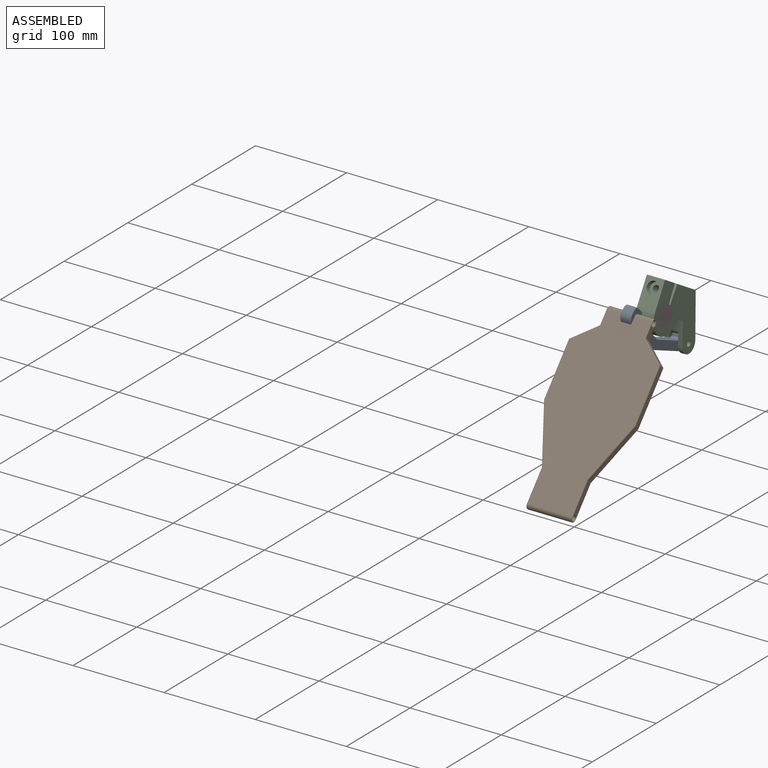
[diagram: assembled view]
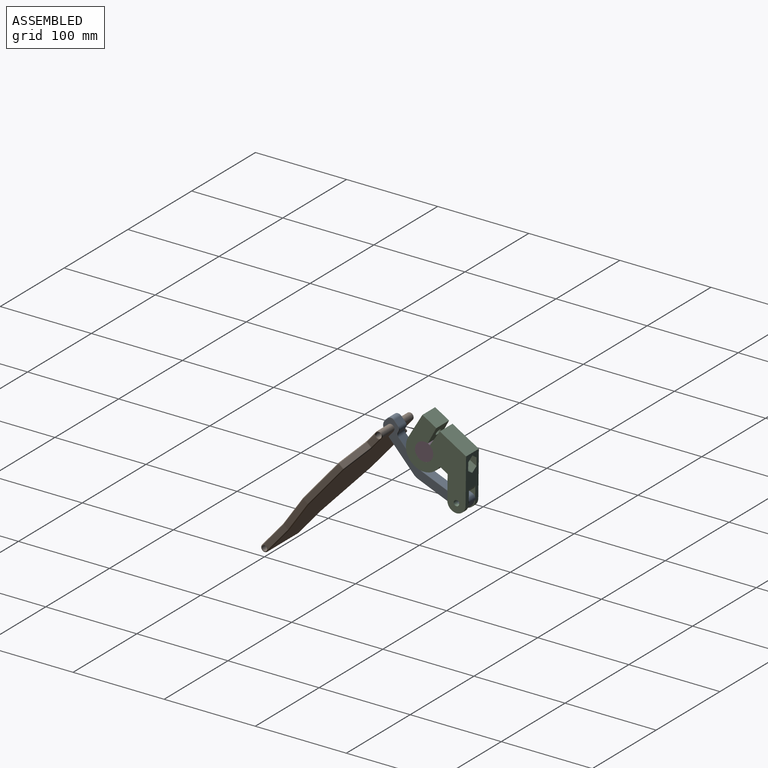
[diagram: assembled view, second angle]
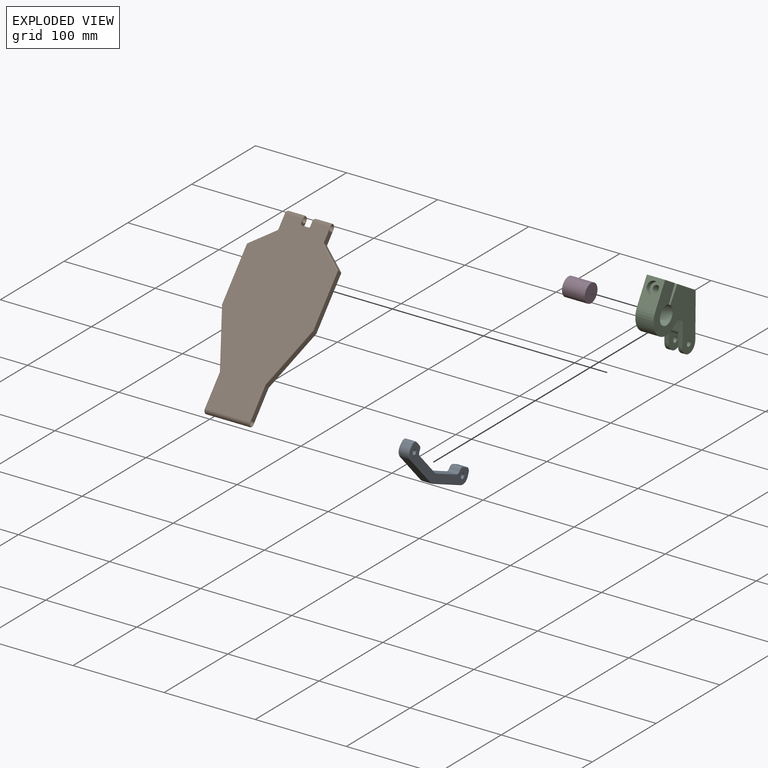
[diagram: exploded view]
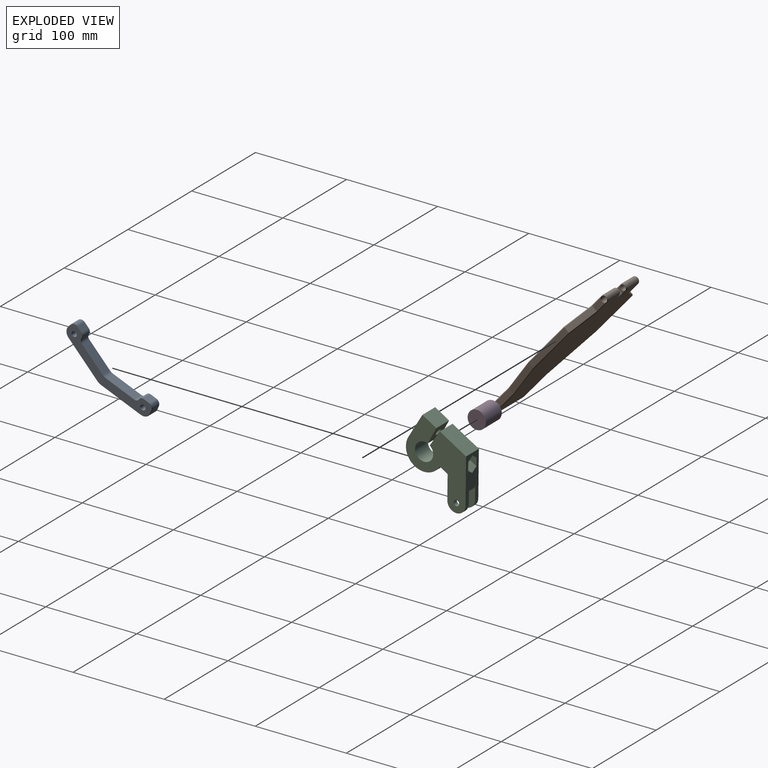
[diagram: exploded view, second angle]
ASSEMBLY  parts=4 mates=3
PART A: 68 faces, bbox 109.2x39.4x11.5 mm
  f0: plane 33.88x10.5mm, normal (0,1,0), area 355.8mm2, adj f12,f23,f42,f61
  f1: plane 30.71x14.32mm, normal (0.42,0.91,0), area 355.8mm2, adj f12,f22,f38,f57
  f2: plane 10.5x6.33mm, normal (0.42,0.91,0), area 73.3mm2, adj f16,f21,f30,f49
  f3: plane 10.5x3.17mm, normal (-0.91,0.42,0), area 36.8mm2, adj f13,f16,f26,f45
  f4: plane 43.15x20.12mm, normal (-0.42,-0.91,0), area 500mm2, adj f13,f14,f25,f46
  f5: plane 47.62x10.5mm, normal (0,-1,0), area 500mm2, adj f14,f15,f29,f50
  f6: plane 10.5x3.5mm, normal (1,0,0), area 36.7mm2, adj f15,f17,f33,f54
  f7: plane 10.5x6.98mm, normal (0,1,0), area 73.3mm2, adj f17,f20,f37,f58
  f8: cylinder r=2.5mm len=10.5mm, axis (0,0,-1), area 164.9mm2, adj f65,f67
  f9: cylinder r=2.5mm len=10.5mm, axis (0,0,-1), area 164.9mm2, adj f64,f66
  f10: plane 106.77x37.27mm, normal (0,0,1), area 1135.8mm2, adj f24,f25,f26,f27,f28,f29,f30,f31
  f11: plane 106.77x37.27mm, normal (0,0,-1), area 1135.8mm2, adj f44,f45,f46,f47,f48,f49,f50,f51
  f12: cylinder r=8.5mm len=10.5mm, axis (0,0,-1), area 38.9mm2, adj f0,f1,f40,f59
  f13: cylinder r=8.5mm len=11.3mm, axis (0,0,-1), area 140.2mm2, adj f3,f4,f24,f44
  f14: cylinder r=8.5mm len=10.5mm, axis (0,0,1), area 38.9mm2, adj f4,f5,f27,f48
  f15: cylinder r=8.5mm len=10.5mm, axis (0,0,1), area 140.2mm2, adj f5,f6,f31,f52
  f16: cylinder r=5mm len=10.5mm, axis (0,0,1), area 82.5mm2, adj f2,f3,f28,f47
  f17: cylinder r=5mm len=10.5mm, axis (0,0,-1), area 82.5mm2, adj f6,f7,f35,f56
  f18: plane 10.5x1.23mm, normal (0.99,-0.16,0), area 13.1mm2, adj f21,f22,f34,f53
  f19: plane 10.5x1.2mm, normal (-0.96,0.27,0), area 13.1mm2, adj f20,f23,f41,f62
  f20: cylinder r=4mm len=10.5mm, axis (0,0,1), area 54.3mm2, adj f7,f19,f39,f60
  f21: cylinder r=4mm len=10.5mm, axis (0,0,-1), area 54.3mm2, adj f2,f18,f32,f51
  f22: cylinder r=4mm len=10.5mm, axis (0,0,1), area 54.3mm2, adj f1,f18,f36,f55
  f23: cylinder r=4mm len=10.5mm, axis (0,0,1), area 54.3mm2, adj f0,f19,f43,f63
  f24: torus R=8mm, axis (0,0,1), area 10.3mm2, adj f10,f13,f25,f26
  f25: cylinder r=0.5mm len=43.37mm, axis (-0.91,0.42,0), area 37.4mm2, adj f4,f10,f24,f27
  f26: cylinder r=0.5mm len=3.38mm, axis (0.42,0.91,0), area 2.7mm2, adj f3,f10,f24,f28
  f27: torus R=8mm, axis (0,0,1), area 2.9mm2, adj f10,f14,f25,f29
  f28: torus R=4.5mm, axis (0,0,1), area 5.9mm2, adj f10,f16,f26,f30
  f29: cylinder r=0.5mm len=47.62mm, axis (-1,0,0), area 37.4mm2, adj f5,f10,f27,f31
  f30: cylinder r=0.5mm len=6.54mm, axis (0.91,-0.42,0), area 5.5mm2, adj f2,f10,f28,f32
  f31: torus R=8mm, axis (0,0,1), area 10.3mm2, adj f10,f15,f29,f33
  f32: torus R=3.5mm, axis (0,0,1), area 3.9mm2, adj f10,f21,f30,f34
  f33: cylinder r=0.5mm len=3.5mm, axis (0,-1,0), area 2.7mm2, adj f6,f10,f31,f35
  f34: cylinder r=0.5mm len=1.31mm, axis (-0.16,-0.99,0), area 1mm2, adj f10,f18,f32,f36
  f35: torus R=4.5mm, axis (0,0,1), area 5.9mm2, adj f10,f17,f33,f37
  f36: torus R=4.5mm, axis (0,0,1), area 4.2mm2, adj f10,f22,f34,f38
  f37: cylinder r=0.5mm len=6.98mm, axis (1,0,0), area 5.5mm2, adj f7,f10,f35,f39
  f38: cylinder r=0.5mm len=30.92mm, axis (0.91,-0.42,0), area 26.6mm2, adj f1,f10,f36,f40
  f39: torus R=3.5mm, axis (0,0,1), area 3.9mm2, adj f10,f20,f37,f41
  f40: torus R=9mm, axis (0,0,1), area 3mm2, adj f10,f12,f38,f42
  f41: cylinder r=0.5mm len=1.34mm, axis (-0.27,-0.96,0), area 1mm2, adj f10,f19,f39,f43
  f42: cylinder r=0.5mm len=33.88mm, axis (1,0,0), area 26.6mm2, adj f0,f10,f40,f43
  f43: torus R=4.5mm, axis (0,0,1), area 4.2mm2, adj f10,f23,f41,f42
  f44: torus R=8mm, axis (0,0,1), area 10.3mm2, adj f11,f13,f45,f46
  f45: cylinder r=0.5mm len=3.38mm, axis (-0.42,-0.91,0), area 2.7mm2, adj f3,f11,f44,f47
  f46: cylinder r=0.5mm len=43.37mm, axis (0.91,-0.42,0), area 37.4mm2, adj f4,f11,f44,f48
  f47: torus R=4.5mm, axis (0,0,1), area 5.9mm2, adj f11,f16,f45,f49
  f48: torus R=8mm, axis (0,0,1), area 2.9mm2, adj f11,f14,f46,f50
  f49: cylinder r=0.5mm len=6.54mm, axis (-0.91,0.42,0), area 5.5mm2, adj f2,f11,f47,f51
  f50: cylinder r=0.5mm len=47.62mm, axis (1,0,0), area 37.4mm2, adj f5,f11,f48,f52
  f51: torus R=3.5mm, axis (0,0,1), area 3.9mm2, adj f11,f21,f49,f53
  f52: torus R=8mm, axis (0,0,1), area 10.3mm2, adj f11,f15,f50,f54
  f53: cylinder r=0.5mm len=1.31mm, axis (-0.16,-0.99,0), area 1mm2, adj f11,f18,f51,f55
  f54: cylinder r=0.5mm len=3.5mm, axis (0,1,0), area 2.7mm2, adj f6,f11,f52,f56
  f55: torus R=4.5mm, axis (0,0,1), area 4.2mm2, adj f11,f22,f53,f57
  f56: torus R=4.5mm, axis (0,0,1), area 5.9mm2, adj f11,f17,f54,f58
  f57: cylinder r=0.5mm len=30.92mm, axis (-0.91,0.42,0), area 26.6mm2, adj f1,f11,f55,f59
  f58: cylinder r=0.5mm len=6.98mm, axis (-1,0,0), area 5.5mm2, adj f7,f11,f56,f60
  f59: torus R=9mm, axis (0,0,1), area 3mm2, adj f11,f12,f57,f61
  f60: torus R=3.5mm, axis (0,0,1), area 3.9mm2, adj f11,f20,f58,f62
  f61: cylinder r=0.5mm len=33.88mm, axis (-1,0,0), area 26.6mm2, adj f0,f11,f59,f63
  f62: cylinder r=0.5mm len=1.34mm, axis (-0.27,-0.96,0), area 1mm2, adj f11,f19,f60,f63
  f63: torus R=4.5mm, axis (0,0,1), area 4.2mm2, adj f11,f23,f61,f62
  f64: torus R=3mm, axis (0,0,1), area 13.2mm2, adj f9,f11
  f65: torus R=3mm, axis (0,0,1), area 13.2mm2, adj f8,f11
  f66: torus R=3mm, axis (0,0,1), area 13.2mm2, adj f9,f10
  f67: torus R=3mm, axis (0,0,1), area 13.2mm2, adj f8,f10
PART B: 86 faces, bbox 202.2x100x10.2 mm
  f0: plane 12.87x6mm, normal (0,-1,0), area 71.6mm2, adj f35,f37,f38,f39
  f1: plane 6x5mm, normal (0,1,0), area 15.9mm2, adj f17,f28,f32,f33
  f2: plane 8x6mm, normal (1,0,0), area 48mm2, adj f23,f27,f28,f29
  f3: plane 6x5mm, normal (0,-1,0), area 15.9mm2, adj f16,f22,f23,f24
  f4: plane 12.87x6mm, normal (0,1,0), area 71.6mm2, adj f78,f82,f83,f84
  f5: plane 24.25x19.4mm, normal (0.78,0.62,0), area 186.3mm2, adj f73,f77,f78,f79
  f6: plane 59.32x6mm, normal (0,1,0), area 355.9mm2, adj f68,f72,f73,f74
  f7: plane 59.63x24.85mm, normal (-0.38,0.92,0), area 387.6mm2, adj f63,f67,f68,f69
  f8: plane 33.15x6mm, normal (0,1,0), area 193.3mm2, adj f60,f62,f63,f64
  f9: plane 35.8x6mm, normal (0,-1,0), area 200.7mm2, adj f15,f53,f57,f58
  f10: plane 59.63x24.85mm, normal (-0.38,-0.92,0), area 387.6mm2, adj f48,f52,f53,f54
  f11: plane 59.32x6mm, normal (0,-1,0), area 355.9mm2, adj f43,f47,f48,f49
  f12: plane 24.25x19.4mm, normal (0.78,-0.62,0), area 186.3mm2, adj f38,f42,f43,f44
  f13: plane 192x98mm, normal (0,0,1), area 14100mm2, adj f18,f19,f20,f22,f25,f27,f30,f32
  f14: plane 192x98mm, normal (0,0,-1), area 14100mm2, adj f18,f19,f20,f24,f26,f29,f31,f33
  f15: cylinder r=3mm len=49mm, axis (0,1,0), area 923.6mm2, adj f9,f59,f60
  f16: cylinder r=3mm len=19mm, axis (0,1,0), area 358.1mm2, adj f3,f21,f83
  f17: cylinder r=3mm len=19mm, axis (0,1,0), area 358.1mm2, adj f1,f34,f35
  f18: cylinder r=4mm len=48mm, axis (0,1,0), area 603.2mm2, adj f13,f14,f59,f61
  f19: cylinder r=4mm len=18mm, axis (0,-1,0), area 226.2mm2, adj f13,f14,f21,f85
  f20: cylinder r=4mm len=18mm, axis (0,-1,0), area 226.2mm2, adj f13,f14,f34,f36
  f21: torus R=3mm, axis (0,1,0), area 17.9mm2, adj f16,f19,f22,f24
  f22: cylinder r=1mm len=5mm, axis (-1,0,0), area 7.9mm2, adj f3,f13,f21,f25
  f23: cylinder r=1mm len=6mm, axis (0,0,-1), area 9.4mm2, adj f2,f3,f25,f26
  f24: cylinder r=1mm len=5mm, axis (1,0,0), area 7.9mm2, adj f3,f14,f21,f26
  f25: torus R=2mm, axis (0,0,1), area 3.4mm2, adj f13,f22,f23,f27
  f26: torus R=2mm, axis (0,0,1), area 3.4mm2, adj f14,f23,f24,f29
  f27: cylinder r=1mm len=8mm, axis (0,-1,0), area 12.6mm2, adj f2,f13,f25,f30
  f28: cylinder r=1mm len=6mm, axis (0,0,1), area 9.4mm2, adj f1,f2,f30,f31
  f29: cylinder r=1mm len=8mm, axis (0,1,0), area 12.6mm2, adj f2,f14,f26,f31
  f30: torus R=2mm, axis (0,0,1), area 3.4mm2, adj f13,f27,f28,f32
  f31: torus R=2mm, axis (0,0,1), area 3.4mm2, adj f14,f28,f29,f33
  f32: cylinder r=1mm len=5mm, axis (1,0,0), area 7.9mm2, adj f1,f13,f30,f34
  f33: cylinder r=1mm len=5mm, axis (-1,0,0), area 7.9mm2, adj f1,f14,f31,f34
  f34: torus R=3mm, axis (0,1,0), area 17.9mm2, adj f17,f20,f32,f33
  f35: torus R=4mm, axis (0,-1,0), area 25.6mm2, adj f0,f17,f36,f37,f39
  f36: torus R=3mm, axis (0,-1,0), area 12.6mm2, adj f20,f35,f37,f39
  f37: cylinder r=1mm len=15.52mm, axis (-1,0,0), area 23.7mm2, adj f0,f13,f35,f36,f40
  f38: cylinder r=1mm len=6mm, axis (0,0,1), area 5.4mm2, adj f0,f12,f40,f41
  f39: cylinder r=1mm len=15.52mm, axis (1,0,0), area 23.7mm2, adj f0,f14,f35,f36,f41
  f40: torus R=2mm, axis (0,0,1), area 1.9mm2, adj f13,f37,f38,f42
  f41: torus R=2mm, axis (0,0,1), area 1.9mm2, adj f14,f38,f39,f44
  f42: cylinder r=1mm len=24.87mm, axis (-0.62,-0.78,0), area 48.8mm2, adj f12,f13,f40,f45
  f43: cylinder r=1mm len=6mm, axis (0,0,-1), area 5.4mm2, adj f11,f12,f45,f46
  f44: cylinder r=1mm len=24.87mm, axis (0.62,0.78,0), area 48.8mm2, adj f12,f14,f41,f46
  f45: sphere r=1mm, area 0.9mm2, adj f42,f43,f47
  f46: sphere r=1mm, area 0.9mm2, adj f43,f44,f49
  f47: cylinder r=1mm len=59.32mm, axis (-1,0,0), area 93.2mm2, adj f11,f13,f45,f50
  f48: cylinder r=1mm len=6mm, axis (0,0,1), area 2.4mm2, adj f10,f11,f50,f51
  f49: cylinder r=1mm len=59.32mm, axis (1,0,0), area 93.2mm2, adj f11,f14,f46,f51
  f50: sphere r=1mm, area 0.4mm2, adj f47,f48,f52
  f51: sphere r=1mm, area 0.4mm2, adj f48,f49,f54
  f52: cylinder r=1mm len=60.02mm, axis (-0.92,0.38,0), area 101.5mm2, adj f10,f13,f50,f55
  f53: cylinder r=1mm len=6mm, axis (0,0,1), area 2.4mm2, adj f9,f10,f55,f56
  f54: cylinder r=1mm len=60.02mm, axis (0.92,-0.38,0), area 101.5mm2, adj f10,f14,f51,f56
  f55: torus R=2mm, axis (0,0,1), area 0.8mm2, adj f13,f52,f53,f57
  f56: torus R=2mm, axis (0,0,1), area 0.8mm2, adj f14,f53,f54,f58
  f57: cylinder r=1mm len=35.8mm, axis (-1,0,0), area 56.2mm2, adj f9,f13,f55,f59
  f58: cylinder r=1mm len=35.8mm, axis (1,0,0), area 56.2mm2, adj f9,f14,f56,f59
  f59: torus R=3mm, axis (0,1,0), area 17.9mm2, adj f15,f18,f57,f58
  f60: torus R=4mm, axis (0,1,0), area 25.6mm2, adj f8,f15,f61,f62,f64
  f61: torus R=3mm, axis (0,1,0), area 12.6mm2, adj f18,f60,f62,f64
  f62: cylinder r=1mm len=35.8mm, axis (1,0,0), area 55.5mm2, adj f8,f13,f60,f61,f65
  f63: cylinder r=1mm len=6mm, axis (0,0,1), area 2.4mm2, adj f7,f8,f65,f66
  f64: cylinder r=1mm len=35.8mm, axis (-1,0,0), area 55.5mm2, adj f8,f14,f60,f61,f66
  f65: torus R=2mm, axis (0,0,1), area 0.8mm2, adj f13,f62,f63,f67
  f66: torus R=2mm, axis (0,0,1), area 0.8mm2, adj f14,f63,f64,f69
  f67: cylinder r=1mm len=60.02mm, axis (0.92,0.38,0), area 101.5mm2, adj f7,f13,f65,f70
  f68: cylinder r=1mm len=6mm, axis (0,0,1), area 2.4mm2, adj f6,f7,f70,f71
  f69: cylinder r=1mm len=60.02mm, axis (-0.92,-0.38,0), area 101.5mm2, adj f7,f14,f66,f71
  f70: sphere r=1mm, area 0.4mm2, adj f67,f68,f72
  f71: sphere r=1mm, area 0.4mm2, adj f68,f69,f74
  f72: cylinder r=1mm len=59.32mm, axis (1,0,0), area 93.2mm2, adj f6,f13,f70,f75
  f73: cylinder r=1mm len=6mm, axis (0,0,-1), area 5.4mm2, adj f5,f6,f75,f76
  f74: cylinder r=1mm len=59.32mm, axis (-1,0,0), area 93.2mm2, adj f6,f14,f71,f76
  f75: sphere r=1mm, area 0.9mm2, adj f72,f73,f77
  f76: sphere r=1mm, area 0.9mm2, adj f73,f74,f79
  f77: cylinder r=1mm len=24.87mm, axis (0.62,-0.78,0), area 48.8mm2, adj f5,f13,f75,f80
  f78: cylinder r=1mm len=6mm, axis (0,0,1), area 5.4mm2, adj f4,f5,f80,f81
  f79: cylinder r=1mm len=24.87mm, axis (-0.62,0.78,0), area 48.8mm2, adj f5,f14,f76,f81
  f80: torus R=2mm, axis (0,0,1), area 1.9mm2, adj f13,f77,f78,f82
  f81: torus R=2mm, axis (0,0,1), area 1.9mm2, adj f14,f78,f79,f84
  f82: cylinder r=1mm len=15.52mm, axis (1,0,0), area 23.7mm2, adj f4,f13,f80,f83,f85
  f83: torus R=4mm, axis (0,-1,0), area 25.6mm2, adj f4,f16,f82,f84,f85
  f84: cylinder r=1mm len=15.52mm, axis (-1,0,0), area 23.7mm2, adj f4,f14,f81,f83,f85
  f85: torus R=3mm, axis (0,-1,0), area 12.6mm2, adj f19,f82,f83,f84
PART C: 32 faces, bbox 81.8x20.1x57.7 mm
  f0: plane 42.66x24.63mm, normal (-0.87,0,0.5), area 663.9mm2, adj f2,f12,f13,f15,f16,f21,f22,f24
  f1: plane 22.66x20mm, normal (0.87,0,-0.5), area 371.5mm2, adj f2,f5,f13,f15,f16,f21,f22,f23
  f2: cylinder r=10mm len=18.66mm, axis (0,1,0), area 157.1mm2, adj f0,f1,f16,f21
  f3: cylinder r=3mm len=6mm, axis (0,1,0), area 94.2mm2, adj f16,f21
  f4: cylinder r=3.5mm len=12.41mm, axis (1,0,0), area 269.5mm2, adj f9,f18
  f5: plane 20x10mm, normal (0,0,-1), area 200mm2, adj f1,f6,f15,f16
  f6: cylinder r=20mm len=40mm, axis (0,1,0), area 1256.6mm2, adj f5,f7,f15,f16
  f7: plane 30x20mm, normal (1,0,0), area 467.3mm2, adj f6,f8,f15,f16,f19
  f8: plane 20x17.82mm, normal (0,0,1), area 356.3mm2, adj f7,f9,f15,f16
  f9: plane 20.15x20.06mm, normal (-1,0,0.04), area 363.6mm2, adj f4,f8,f10,f15,f16
  f10: cylinder r=10mm len=20mm, axis (0,1,0), area 1204.2mm2, adj f9,f11,f15,f16
  f11: plane 20.09x20mm, normal (1,0,0.04), area 363.6mm2, adj f10,f12,f15,f16,f17
  f12: plane 33.59x20mm, normal (0,0,1), area 671.8mm2, adj f0,f11,f15,f16
  f13: cylinder r=10mm len=18.66mm, axis (0,1,0), area 157.1mm2, adj f0,f1,f15,f22
  f14: cylinder r=3mm len=6mm, axis (0,1,0), area 94.2mm2, adj f15,f22
  f15: plane 81.74x57.66mm, normal (0,-1,0), area 2713.8mm2, adj f0,f1,f5,f6,f7,f8,f9,f10
  f16: plane 81.74x57.66mm, normal (0,1,0), area 2713.8mm2, adj f0,f1,f2,f3,f5,f6,f7,f8
  f17: cylinder r=3.5mm len=23.41mm, axis (1,0,0), area 511.4mm2, adj f11,f31
  f18: plane 13x13mm, normal (1,0,0), area 94.2mm2, adj f4,f19
  f19: cylinder r=6.5mm len=13mm, axis (1,0,0), area 245mm2, adj f7,f18
  f20: cylinder r=11mm len=10mm, axis (0,-1,0), area 69.9mm2, adj f21,f22,f23,f24
  f21: plane 28.19x26.25mm, normal (0,-1,0), area 348.1mm2, adj f0,f1,f2,f3,f20,f23,f24
  f22: plane 28.19x26.25mm, normal (0,1,0), area 348.1mm2, adj f0,f1,f13,f14,f20,f23,f24
  f23: cylinder r=5mm len=10mm, axis (0,-1,0), area 94.7mm2, adj f1,f20,f21,f22
  f24: cylinder r=5mm len=10mm, axis (0,-1,0), area 94.2mm2, adj f0,f20,f21,f22
  f25: plane 18.71x7.51mm, normal (0,1,0), area 124.2mm2, adj f0,f26,f30,f31
  f26: plane 20.88x6.5mm, normal (0,0.5,0.87), area 148.6mm2, adj f0,f25,f27,f31
  f27: plane 20.88x6.5mm, normal (0,-0.5,0.87), area 148.6mm2, adj f0,f26,f28,f31
  f28: plane 18.71x7.51mm, normal (0,-1,0), area 124.2mm2, adj f0,f27,f29,f31
  f29: plane 14.38x6.5mm, normal (0,-0.5,-0.87), area 99.8mm2, adj f0,f28,f30,f31
  f30: plane 14.38x6.5mm, normal (0,0.5,-0.87), area 99.8mm2, adj f0,f25,f29,f31
  f31: plane 15.01x13mm, normal (-1,0,0), area 107.9mm2, adj f17,f25,f26,f27,f28,f29,f30
PART D: 3 faces, bbox 20x25x20 mm
  f0: cylinder r=10mm len=25mm, axis (0,-1,0), area 1570.8mm2, adj f1,f2
  f1: plane 20x20mm, normal (0,1,0), area 314.2mm2, adj f0
  f2: plane 20x20mm, normal (0,-1,0), area 314.2mm2, adj f0
PLACE A rot(axis=(0.34,-0.88,-0.34),97.6deg) t=(-19.5,152.18,103.7)mm
PLACE B rot(axis=(0.38,-0.38,0.84),100deg) t=(-25,65.66,70.15)mm
PLACE C rot(axis=(-0.26,-0.26,-0.93),94deg) t=(-24.5,165.18,134.5)mm
PLACE D rot(axis=(-0.7,-0.7,-0.11),167.4deg) t=(-49.5,165.18,134.5)mm fixed
MATE revolute C.f20 <-> A.f9  axis (-1,0,0) through (-19.5,200.73,92.91)mm
MATE revolute B.f20 <-> A.f8  axis (-1,0,0) through (-20,125.26,145.52)mm
MATE revolute C.f6 <-> D.f0  axis (1,0,0) through (-14.5,165.18,134.5)mm
